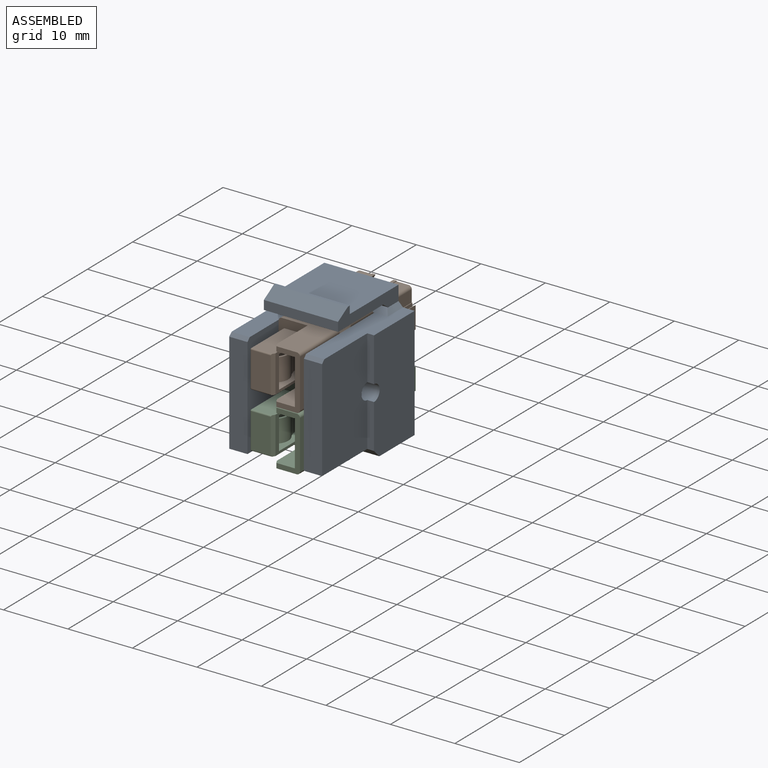
[diagram: assembled view]
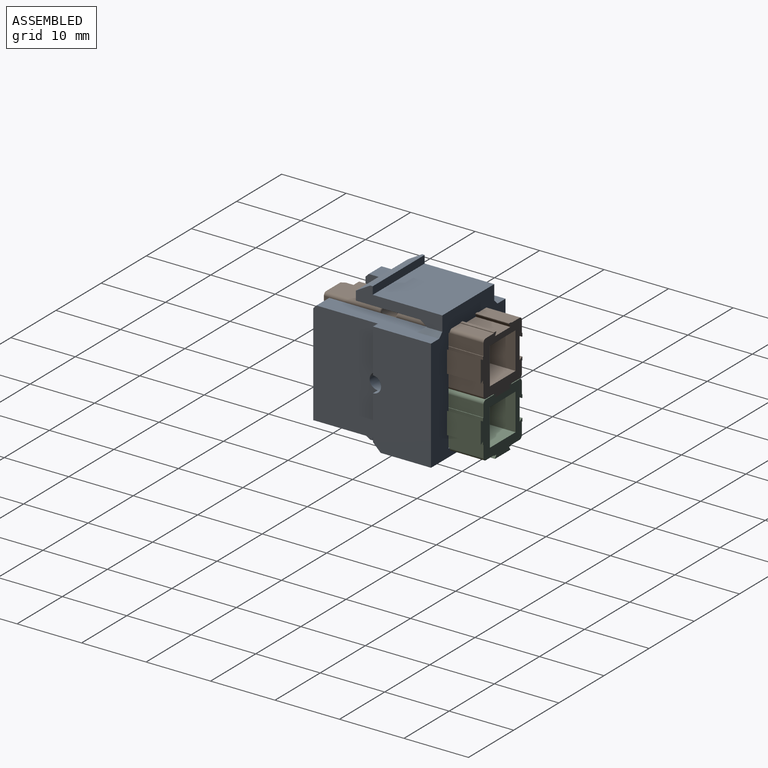
[diagram: assembled view, second angle]
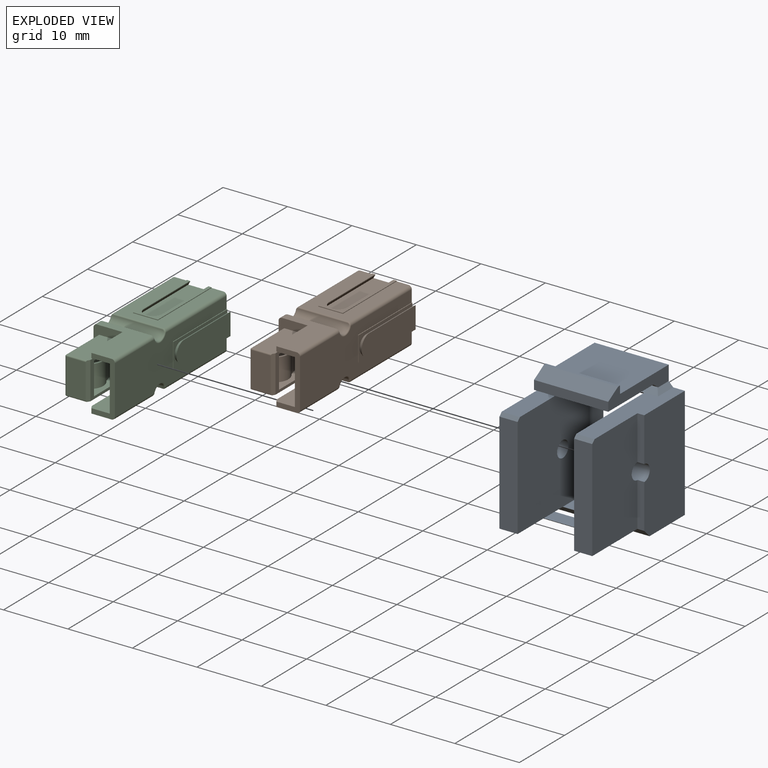
[diagram: exploded view]
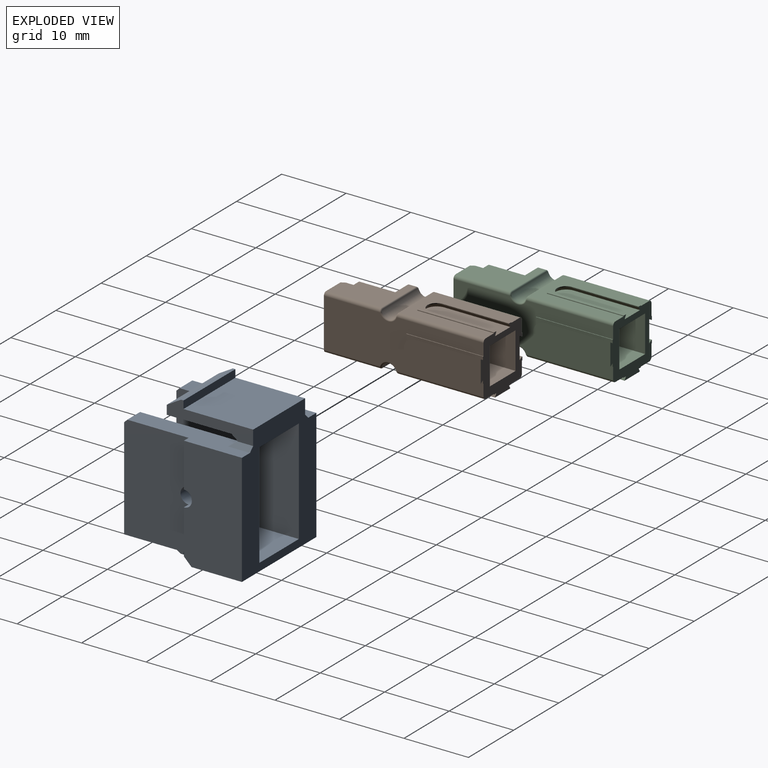
[diagram: exploded view, second angle]
FCSTD DOCUMENT  (FreeCAD 1.0R39319 (Git))
Label: AndersonPowerpole_Keystone
License: All rights reserved
LicenseURL: https://en.wikipedia.org/wiki/All_rights_reserved
objects: Sketcher::SketchObject×4, PartDesign::Pad×4, Part::Feature×3, App::Part×3, App::FeaturePython×3, PartDesign::Pocket×2, PartDesign::Chamfer×2, PartDesign::FeatureBase×1, PartDesign::Body×1, Assembly::JointGroup×1, Assembly::AssemblyObject×1
note: 38 computed .brp shape members not serialized (recipe doc carries the construction recipe); baked Part::Feature solids carry a one-line shape summary decoded from their .brp

FEATURE [Part::Feature] keystone_blank_insert_chamfer002_solid  label="keystone_blank_insert_chamfer002 (Solid)"
  shape: bbox 16.5 x 19 x 21.6 mm, 39 faces (baked)
FEATURE [PartDesign::FeatureBase] BaseFeature
  BaseFeature = -> keystone_blank_insert_chamfer002_solid
  Suppressed = false
FEATURE [Sketcher::SketchObject] Sketch001
  ArcFitTolerance = 1e-06
  AttachmentSupport = -> [BaseFeature]
  ExternalGeometry = -> [BaseFeature]
  FullyConstrained = true
  MakeInternals = false
  MapMode = 5
  Placement = pos=(0,3,0) rot=(0,0.707107,0.707107;3.14159rad)
  sketch-geometry (4):
    g0: LineSegment StartX=0 StartY=14.2 StartZ=0 EndX=-14.4 EndY=14.2 EndZ=0
    g1: LineSegment StartX=-14.4 StartY=14.2 StartZ=0 EndX=-14.4 EndY=2 EndZ=0
    g2: LineSegment StartX=-14.4 StartY=2 StartZ=0 EndX=0 EndY=2 EndZ=0
    g3: LineSegment StartX=0 StartY=2 StartZ=0 EndX=0 EndY=14.2 EndZ=0
  constraints (10):
    c: Coincident(g0,g1)
    c: Coincident(g1,g2)
    c: Coincident(g2,g3)
    c: Coincident(g3,g0)
    c: Horizontal(g0)
    c: Horizontal(g2)
    c: Vertical(g1)
    c: Vertical(g3)
    c: Coincident(g0,g-3)
    c: Coincident(g2,g-4)
FEATURE [PartDesign::Pad] Pad
  BaseFeature = -> BaseFeature
  Direction = (0,1,-2e-16)
  Length = 3
  Length2 = 10
  Profile = -> Sketch001
  ReferenceAxis = -> Sketch001 [N_Axis]
  Refine = true
  Suppressed = false
  Type = 3
  UpToFace = -> BaseFeature [Face25]
FEATURE [Sketcher::SketchObject] Sketch
  ArcFitTolerance = 1e-06
  AttachmentSupport = -> [Pad]
  ExternalGeometry = -> [Pad]
  FullyConstrained = true
  MakeInternals = false
  MapMode = 5
  Placement = pos=(0,19,0) rot=(0,0.707107,0.707107;3.14159rad)
  sketch-geometry (6):
    g0: LineSegment StartX=-11.575 StartY=16.2 StartZ=0 EndX=-11.575 EndY=7.1e-15 EndZ=0
    g1: LineSegment StartX=-11.575 StartY=7.1e-15 StartZ=0 EndX=-2.825 EndY=7.1e-15 EndZ=0
    g2: LineSegment StartX=-2.825 StartY=7.1e-15 StartZ=0 EndX=-2.825 EndY=16.2 EndZ=0
    g3: LineSegment StartX=-2.825 StartY=16.2 StartZ=0 EndX=-11.575 EndY=16.2 EndZ=0
    g4: GeomPoint X=-7.2 Y=6.4e-15 Z=0
    g5: GeomPoint X=-7.2 Y=6.4e-15 Z=0
  constraints (13):
    c: Coincident(g0,g1)
    c: Coincident(g1,g2)
    c: Coincident(g2,g3)
    c: Coincident(g3,g0)
    c: Vertical(g0)
    c: Vertical(g2)
    c: Horizontal(g1)
    c: Horizontal(g3)
    c: Distance(g1,g3) = 16.2
    c: DistanceX(g3,g3) = 8.75
    c: Symmetric(g1,g1,g4)
    c: Symmetric(g-3,g-3,g5)
    c: Coincident(g4,g5)
FEATURE [PartDesign::Pocket] Pocket
  BaseFeature = -> Pad
  Direction = (0,-1,2e-16)
  Length = 5
  Length2 = 5
  Profile = -> Sketch
  ReferenceAxis = -> Sketch [N_Axis]
  Refine = true
  Suppressed = false
  Type = 1
FEATURE [PartDesign::Pad] Pad001
  BaseFeature = -> Pocket
  Direction = (0,0,-1)
  Length = 10
  Length2 = 10
  Profile = -> Pocket [Face27]
  Refine = true
  Suppressed = false
  Type = 3
  UpToFace = -> Pocket [Face29]
FEATURE [PartDesign::Pad] Pad002
  BaseFeature = -> Pad001
  Direction = (0,0,-1)
  Length = 10
  Length2 = 10
  Profile = -> Pad001 [Face10]
  Refine = true
  Suppressed = false
  Type = 3
  UpToFace = -> Pad001 [Face9]
FEATURE [Sketcher::SketchObject] Sketch002
  ArcFitTolerance = 1e-06
  AttachmentSupport = -> [Pad002]
  ExternalGeometry = -> [Pad002]
  FullyConstrained = true
  MakeInternals = false
  MapMode = 5
  Placement = pos=(0,19,0) rot=(0,0.707107,0.707107;3.14159rad)
  sketch-geometry (4):
    g0: LineSegment StartX=-15.45 StartY=1.42e-14 StartZ=0 EndX=-15.45 EndY=-1.2 EndZ=0
    g1: LineSegment StartX=-15.45 StartY=-1.2 StartZ=0 EndX=1.05 EndY=-1.2 EndZ=0
    g2: LineSegment StartX=1.05 StartY=-1.2 StartZ=0 EndX=1.05 EndY=1.42e-14 EndZ=0
    g3: LineSegment StartX=1.05 StartY=1.42e-14 StartZ=0 EndX=-15.45 EndY=1.42e-14 EndZ=0
  constraints (11):
    c: Coincident(g0,g1)
    c: Coincident(g1,g2)
    c: Coincident(g2,g3)
    c: Coincident(g3,g0)
    c: Vertical(g0)
    c: Vertical(g2)
    c: Horizontal(g1)
    c: Horizontal(g3)
    c: Distance(g1,g3) = 1.2
    c: Coincident(g0,g-3)
    c: PointOnObject(g-4,g2)
FEATURE [PartDesign::Pad] Pad003
  BaseFeature = -> Pad002
  Direction = (0,1,-2e-16)
  Length = 10
  Length2 = 10
  Profile = -> Sketch002
  ReferenceAxis = -> Sketch002 [N_Axis]
  Refine = true
  Reversed = true
  Suppressed = false
  Type = 3
  UpToFace = -> Pad002 [Face31]
FEATURE [PartDesign::Chamfer] Chamfer
  Angle = 45
  Base = -> Pad003 [Edge3]
  BaseFeature = -> Pad003
  ChamferType = 0
  FlipDirection = false
  Refine = true
  Size = 1.19
  Size2 = 1
  SupportTransform = false
  Suppressed = false
  UseAllEdges = false
FEATURE [PartDesign::Chamfer] Chamfer001
  Angle = 45
  Base = -> Chamfer [Edge33,Edge49]
  BaseFeature = -> Chamfer
  ChamferType = 0
  FlipDirection = false
  Refine = true
  Size = 0.7
  Size2 = 1
  SupportTransform = false
  Suppressed = false
  UseAllEdges = false
FEATURE [Sketcher::SketchObject] Sketch003
  ArcFitTolerance = 1e-06
  AttachmentSupport = -> [Chamfer001]
  FullyConstrained = true
  MakeInternals = false
  MapMode = 5
  Placement = pos=(14.4,0,0) rot=(0.57735,0.57735,0.57735;2.0944rad)
  sketch-geometry (1):
    g0: Circle CenterX=10 CenterY=8.1 CenterZ=0 NormalX=0 NormalY=0 NormalZ=1 AngleXU=0 Radius=1.25
  constraints (3):
    c: Diameter(g0) = 2.5
    c: DistanceY(g-1,g0) = 8.1
    c: DistanceX(g-1,g0) = 10
FEATURE [PartDesign::Pocket] Pocket001
  BaseFeature = -> Chamfer001
  Direction = (-1,0,0)
  Length = 5
  Length2 = 5
  Midplane = true
  Profile = -> Sketch003
  ReferenceAxis = -> Sketch003 [N_Axis]
  Refine = true
  Suppressed = false
  Type = 1
FEATURE [PartDesign::Body] Body
  AllowCompound = false
  BaseFeature = -> keystone_blank_insert_chamfer002_solid
  Group = -> [BaseFeature,Sketch001,Pad,Sketch,Pocket,Pad001,Pad002,Sketch002,Pad003,Chamfer,Chamfer001,Sketch003,Pocket001]
  Origin = -> Origin
  Tip = -> Pocket001
FEATURE [App::Part] Part  label="Keystone"
  Group = -> [keystone_blank_insert_chamfer002_solid,Body]
  Origin = -> Origin001
FEATURE [App::FeaturePython] GroundedJoint  # Assembly grounded joint (typed FeaturePython)
  ObjectToGround = -> Part
FEATURE [Part::Feature] Part__Feature001  label="powerpole 15-45A housing"
  shape: bbox 9.2 x 9.2 x 24.75 mm, 117 faces (baked)
FEATURE [App::Part] Part002  label="RED AP"
  Group = -> [Part__Feature001]
  Origin = -> Origin004
  Placement = pos=(7.075,24.2457,12.3467) rot=(-0.57735,-0.57735,0.57735;4.18879rad)
FEATURE [Part::Feature] Part__Feature002  label="powerpole 15-45A housing001"
  shape: bbox 9.2 x 9.2 x 24.75 mm, 117 faces (baked)
FEATURE [App::Part] Part003  label="BLACK AP"
  Group = -> [Part__Feature002]
  Origin = -> Origin005
  Placement = pos=(7.075,24.2457,3.74672) rot=(-0.57735,-0.57735,0.57735;4.18879rad)
FEATURE [App::FeaturePython] Joint001  label="Fixed001"  # Assembly joint (typed FeaturePython)
  Activated = true
  AngleMax = 0
  AngleMin = 0
  Detach1 = false
  Detach2 = false
  Distance = 0
  Distance2 = 0
  EnableAngleMax = false
  EnableAngleMin = false
  EnableLengthMax = false
  EnableLengthMin = false
  JointType = 0 (Fixed)
  LengthMax = 0
  LengthMin = 0
  Offset2 = pos=(0,0,0) rot=(0,0,-1;1.5708rad)
  Placement1 = pos=(4.25,-4.25,14.75) rot=(0.57735,0.57735,0.57735;4.18879rad)
  Placement2 = pos=(2.825,9.49575,8.09672) rot=(0.57735,-0.57735,-0.57735;2.0944rad)
  Reference1 = -> Assembly [Part002.Part__Feature001.Edge139,Part002.Part__Feature001.Edge139]
  Reference2 = -> Assembly [Part.Body.Face14,Part.Body.Face14]
FEATURE [App::FeaturePython] Joint  label="Fixed"  # Assembly joint (typed FeaturePython)
  Activated = true
  AngleMax = 0
  AngleMin = 0
  Detach1 = false
  Detach2 = false
  Distance = 0
  Distance2 = 0
  EnableAngleMax = false
  EnableAngleMin = false
  EnableLengthMax = false
  EnableLengthMin = false
  JointType = 0 (Fixed)
  LengthMax = 0
  LengthMin = 0
  Placement1 = pos=(-3.75,0,5.7988) rot=(0,1,0;1.5708rad)
  Placement2 = pos=(4.85,0,5.7988) rot=(0,1,0;1.5708rad)
  Reference1 = -> Assembly [Part003.Part__Feature002.Face34,Part003.Part__Feature002.Face34]
  Reference2 = -> Assembly [Part002.Part__Feature001.Face67,Part002.Part__Feature001.Face67]
FEATURE [Assembly::JointGroup] Joints
  Group = -> [GroundedJoint,Joint001,Joint]
FEATURE [Assembly::AssemblyObject] Assembly
  Group = -> [Joints,Part,GroundedJoint,Part002,Part003,Joint001,Joint]
  Origin = -> Origin006
  Type = Assembly
